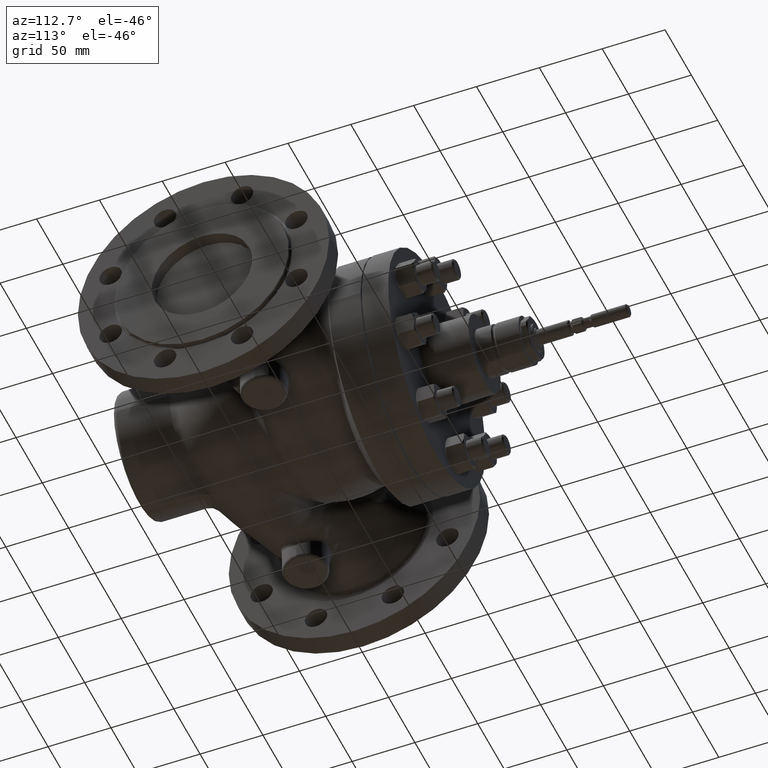
[diagram: clean part render]
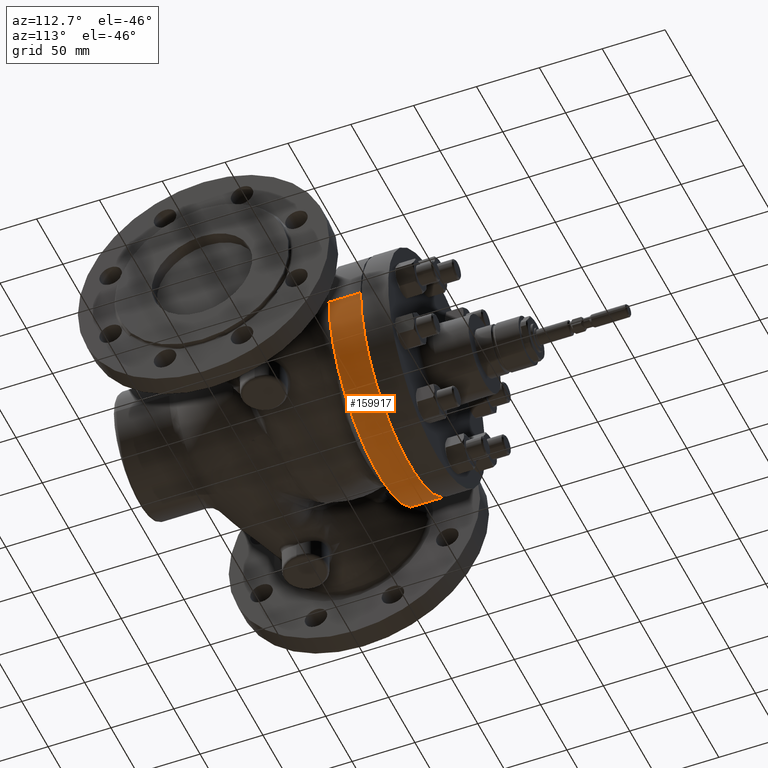
[diagram: same view with one face highlighted and labeled with its STEP entity id]
A machine part, auxiliary view. The second image highlights one B-rep face of the part: STEP entity #159917.
In plain terms, the highlighted cylindrical surface (partial cylindrical patch) has radius 92.5 mm, axis along (-0, 1, -0).
Its self-contained STEP definition (entity closure, byte-faithful):
#1675 = EDGE_LOOP ( 'NONE', ( #177356, #72513, #17549, #190479 ) ) ;
#6665 = DIRECTION ( 'NONE',  ( -1.000000000000000000, -1.500301384628589900E-016, 0.0000000000000000000 ) ) ;
#17549 = ORIENTED_EDGE ( 'NONE', *, *, #131181, .T. ) ;
#27697 = CARTESIAN_POINT ( 'NONE',  ( -92.50000000000001400, 99.99999999999997200, 0.0000000000000000000 ) ) ;
#28052 = EDGE_CURVE ( 'NONE', #38037, #204596, #111654, .T. ) ;
#32758 = VERTEX_POINT ( 'NONE', #125473 ) ;
#35058 = CIRCLE ( 'NONE', #117101, 92.50000000000000000 ) ;
#38037 = VERTEX_POINT ( 'NONE', #192460 ) ;
#40826 = CARTESIAN_POINT ( 'NONE',  ( 3.307912984716189100E-015, 75.00000000000007100, 0.0000000000000000000 ) ) ;
#40894 = CARTESIAN_POINT ( 'NONE',  ( 92.50000000000001400, -115.0010000000000200, 1.132798289211301500E-014 ) ) ;
#49502 = VERTEX_POINT ( 'NONE', #27697 ) ;
#57392 = CARTESIAN_POINT ( 'NONE',  ( -92.50000000000000000, 75.00000000000005700, 0.0000000000000000000 ) ) ;
#58199 = DIRECTION ( 'NONE',  ( -1.000000000000000000, -1.500301384628589900E-016, 0.0000000000000000000 ) ) ;
#58266 = DIRECTION ( 'NONE',  ( -1.224646799147352200E-016, 1.000000000000000000, -0.0000000000000000000 ) ) ;
#61938 = VECTOR ( 'NONE', #144556, 1000.000000000000000 ) ;
#72307 = CARTESIAN_POINT ( 'NONE',  ( 1.408356065487446900E-014, -115.0010000000000300, 0.0000000000000000000 ) ) ;
#72513 = ORIENTED_EDGE ( 'NONE', *, *, #28052, .T. ) ;
#72653 = EDGE_CURVE ( 'NONE', #38037, #32758, #116304, .T. ) ;
#73650 = EDGE_CURVE ( 'NONE', #32758, #49502, #35058, .T. ) ;
#90486 = DIRECTION ( 'NONE',  ( -1.224646799147352000E-016, 1.000000000000000000, 0.0000000000000000000 ) ) ;
#92707 = DIRECTION ( 'NONE',  ( -1.224646799147352200E-016, 1.000000000000000000, -0.0000000000000000000 ) ) ;
#110854 = VECTOR ( 'NONE', #58266, 1000.000000000000000 ) ;
#111654 = CIRCLE ( 'NONE', #207967, 92.50000000000000000 ) ;
#113267 = LINE ( 'NONE', #196646, #61938 ) ;
#116304 = LINE ( 'NONE', #40894, #110854 ) ;
#117101 = AXIS2_PLACEMENT_3D ( 'NONE', #193888, #90486, #211246 ) ;
#125473 = CARTESIAN_POINT ( 'NONE',  ( 92.49999999999998600, 100.0000000000000000, 1.132798289211301500E-014 ) ) ;
#131181 = EDGE_CURVE ( 'NONE', #204596, #49502, #113267, .T. ) ;
#139336 = AXIS2_PLACEMENT_3D ( 'NONE', #72307, #92707, #6665 ) ;
#143858 = CYLINDRICAL_SURFACE ( 'NONE', #139336, 92.50000000000000000 ) ;
#144556 = DIRECTION ( 'NONE',  ( -1.224646799147352200E-016, 1.000000000000000000, -0.0000000000000000000 ) ) ;
#159917 = ADVANCED_FACE ( 'NONE', ( #195214 ), #143858, .T. ) ;
#161616 = DIRECTION ( 'NONE',  ( -9.007972039800100000E-017, 1.000000000000000000, 0.0000000000000000000 ) ) ;
#177356 = ORIENTED_EDGE ( 'NONE', *, *, #72653, .F. ) ;
#190479 = ORIENTED_EDGE ( 'NONE', *, *, #73650, .F. ) ;
#192460 = CARTESIAN_POINT ( 'NONE',  ( 92.49999999999998600, 75.00000000000008500, 1.132798289211301500E-014 ) ) ;
#193888 = CARTESIAN_POINT ( 'NONE',  ( -1.224646799147352000E-014, 99.99999999999998600, 0.0000000000000000000 ) ) ;
#195214 = FACE_OUTER_BOUND ( 'NONE', #1675, .T. ) ;
#196646 = CARTESIAN_POINT ( 'NONE',  ( -92.49999999999998600, -115.0010000000000500, 0.0000000000000000000 ) ) ;
#204596 = VERTEX_POINT ( 'NONE', #57392 ) ;
#207967 = AXIS2_PLACEMENT_3D ( 'NONE', #40826, #161616, #58199 ) ;
#211246 = DIRECTION ( 'NONE',  ( -1.000000000000000000, -1.500301384628589900E-016, 0.0000000000000000000 ) ) ;